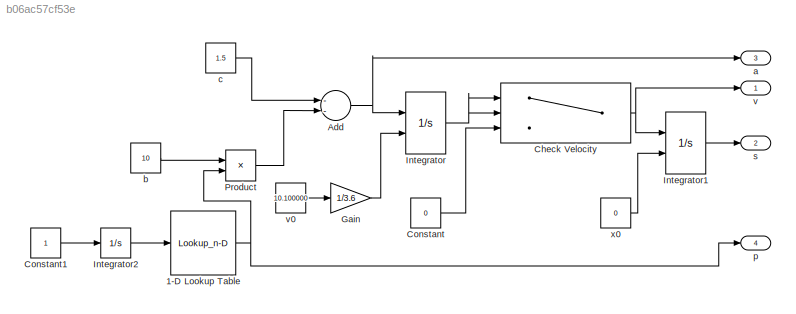
MODEL slx_b06ac57cf53e
KIND model
CONFIG AbsTol = auto
CONFIG EnableMultiTasking = off
CONFIG FixedStep = 0.001000
CONFIG MaxStep = auto
CONFIG MinStep = auto
CONFIG RelTol = 1e-3
CONFIG SampleTimeConstraint = Unconstrained
CONFIG Solver = ode8
CONFIG SolverName = ode8
CONFIG StartTime = 0.0
CONFIG StopTime = 2
BLOCK [Lookup_n-D] 1-D Lookup Table
  BreakpointsForDimension1 = [0 0.2 0.4 0.6 0.8 1 1.2]
  ExtrapMethod = Clip
  InternalRulePriority = Speed
  NumberOfTableDimensions = 1
  Ports = [1, 1]
  RndMeth = Simplest
  Table = [0 .043 0.073 0.078 0.073 0.043 0.0]
  UseLastTableValue = on
BLOCK [Sum] Add
  InputSameDT = off
  Inputs = --
  OutDataTypeStr = Inherit: Inherit via internal rule
  Ports = [2, 1]
  SaturateOnIntegerOverflow = off
BLOCK [Switch] Check Velocity
  InputSameDT = off
  SaturateOnIntegerOverflow = off
  Threshold = 0.0806
BLOCK [Constant] Constant
  Value = 0
BLOCK [Constant] Constant1
BLOCK [Gain] Gain
  Gain = 1/3.6
  OutDataTypeStr = Inherit: Inherit via internal rule
  ParamDataTypeStr = Inherit: Inherit via internal rule
  SaturateOnIntegerOverflow = off
BLOCK [Integrator] Integrator
  InitialConditionSource = external
  Ports = [2, 1]
BLOCK [Integrator] Integrator1
  InitialConditionSource = external
  Ports = [2, 1]
BLOCK [Integrator] Integrator2
  Ports = [1, 1]
BLOCK [Product] Product
  InputSameDT = off
  OutDataTypeStr = Inherit: Inherit via internal rule
  Ports = [2, 1]
  RndMeth = Floor
  SaturateOnIntegerOverflow = off
BLOCK [Outport] a
  IconDisplay = Port number
  Port = 3
BLOCK [Constant] b
  Value = 10
BLOCK [Constant] c
  Value = 1.5
BLOCK [Outport] p
  IconDisplay = Port number
  Port = 4
BLOCK [Outport] s 
  IconDisplay = Port number
  Port = 2
BLOCK [Outport] v
  IconDisplay = Port number
BLOCK [Constant] v0
  Value = 10.100000
BLOCK [Constant] x0
  Value = 0
NET 1-D Lookup Table:1 -> Product:2, p:1
NET Add:1 -> Integrator:1, a:1
NET Check Velocity:1 -> Integrator1:1, v:1
LINE Constant1:1 -> Integrator2:1
LINE Constant:1 -> Check Velocity:3
LINE Gain:1 -> Integrator:2
LINE Integrator1:1 -> s :1
LINE Integrator2:1 -> 1-D Lookup Table:1
NET Integrator:1 -> Check Velocity:1, Check Velocity:2
LINE Product:1 -> Add:2
LINE b:1 -> Product:1
LINE c:1 -> Add:1
LINE v0:1 -> Gain:1
LINE x0:1 -> Integrator1:2
note: NET lines group one-source signal fan-out (src -> all destinations, sorted); 1:1 wires keep LINE
